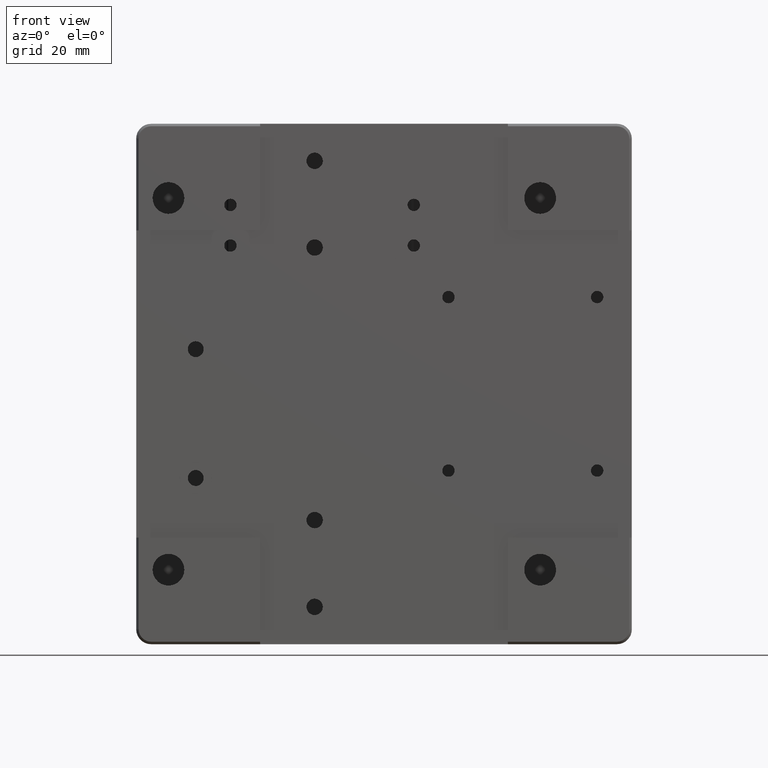
[diagram: clean part render]
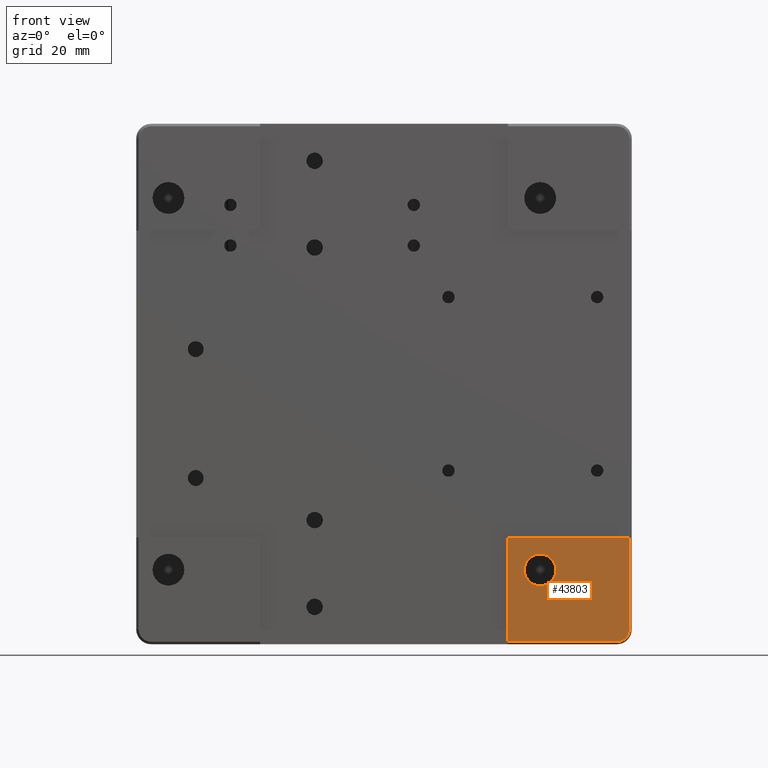
[diagram: same view with one face highlighted and labeled with its STEP entity id]
A machine part, front view. The second image highlights one B-rep face of the part: STEP entity #43803.
In plain terms, the highlighted planar face has unit normal (-0, 1, 0).
Its self-contained STEP definition (entity closure, byte-faithful):
#1004 = CARTESIAN_POINT ( 'NONE',  ( 31.50000000000000000, -19.99999999999999645, -40.70000000000000284 ) ) ;
#1654 = CARTESIAN_POINT ( 'NONE',  ( 31.50000000000000000, -19.99999999999999645, -40.70000000000000284 ) ) ;
#1696 = VERTEX_POINT ( 'NONE', #41038 ) ;
#1903 = EDGE_CURVE ( 'NONE', #23470, #4266, #25280, .T. ) ;
#3138 = LINE ( 'NONE', #7585, #42183 ) ;
#3626 = VERTEX_POINT ( 'NONE', #23172 ) ;
#4266 = VERTEX_POINT ( 'NONE', #17866 ) ;
#5052 = CARTESIAN_POINT ( 'NONE',  ( 33.46654950391972250, -20.00000000000000000, -34.94106610432581306 ) ) ;
#5295 = CARTESIAN_POINT ( 'NONE',  ( 33.11158073718687689, -20.00000000000000000, -34.70388355726637997 ) ) ;
#5623 = CARTESIAN_POINT ( 'NONE',  ( 31.91887902047864500, -19.99999999999999645, -40.70000000000000995 ) ) ;
#5675 = DIRECTION ( 'NONE',  ( 0.0000000000000000000, 0.0000000000000000000, 1.000000000000000000 ) ) ;
#6488 = CARTESIAN_POINT ( 'NONE',  ( 28.30000000000000071, -20.00000000000000000, -37.08112097952135855 ) ) ;
#6743 = CARTESIAN_POINT ( 'NONE',  ( 29.88841926281311956, -20.00000000000000000, -34.70388355726637997 ) ) ;
#6780 = CARTESIAN_POINT ( 'NONE',  ( 25.00000000000000000, -20.00000000000000000, -31.00000000000000000 ) ) ;
#6853 = DIRECTION ( 'NONE',  ( 1.000000000000000000, -0.0000000000000000000, -0.0000000000000000000 ) ) ;
#7585 = CARTESIAN_POINT ( 'NONE',  ( 0.0000000000000000000, -20.00000000000000000, -52.00000000000000000 ) ) ;
#7656 = ORIENTED_EDGE ( 'NONE', *, *, #16476, .F. ) ;
#8910 = ORIENTED_EDGE ( 'NONE', *, *, #48940, .F. ) ;
#8972 = FACE_OUTER_BOUND ( 'NONE', #47419, .T. ) ;
#9970 = CARTESIAN_POINT ( 'NONE',  ( 28.94106610432581661, -20.00000000000000000, -35.53345049608027750 ) ) ;
#10263 = CARTESIAN_POINT ( 'NONE',  ( 49.43654202398900566, -20.00000000000000000, -50.15060748436928151 ) ) ;
#10469 = CARTESIAN_POINT ( 'NONE',  ( 31.50000000000000000, -20.00000000000000355, -34.29999999999999716 ) ) ;
#10512 = CARTESIAN_POINT ( 'NONE',  ( 46.99999999540479934, -20.00000393786149999, -51.99998649998690325 ) ) ;
#10695 = EDGE_CURVE ( 'NONE', #4266, #1696, #48171, .T. ) ;
#11674 = CARTESIAN_POINT ( 'NONE',  ( 34.61671256533860941, -20.00000000000000000, -38.33759322994969665 ) ) ;
#12033 = EDGE_LOOP ( 'NONE', ( #7656, #36468, #14705, #35354 ) ) ;
#12078 = VERTEX_POINT ( 'NONE', #6780 ) ;
#12172 = CARTESIAN_POINT ( 'NONE',  ( 0.0000000000000000000, -20.00000000000000000, -31.00000000000000000 ) ) ;
#13405 = VECTOR ( 'NONE', #22843, 1000.000000000000000 ) ;
#14705 = ORIENTED_EDGE ( 'NONE', *, *, #1903, .F. ) ;
#14798 = AXIS2_PLACEMENT_3D ( 'NONE', #36655, #25485, #40623 ) ;
#14885 = ORIENTED_EDGE ( 'NONE', *, *, #15473, .F. ) ;
#15473 = EDGE_CURVE ( 'NONE', #3626, #44435, #48529, .T. ) ;
#15545 = CARTESIAN_POINT ( 'NONE',  ( 49.50000000000000000, -20.00000000000000000, 0.0000000000000000000 ) ) ;
#16106 = CARTESIAN_POINT ( 'NONE',  ( 25.00000000000000000, -20.00000000000000000, -52.00000000000000000 ) ) ;
#16476 = EDGE_CURVE ( 'NONE', #1696, #42017, #41439, .T. ) ;
#17600 = CARTESIAN_POINT ( 'NONE',  ( 34.05893389567417984, -20.00000000000000000, -35.53345049608026329 ) ) ;
#17866 = CARTESIAN_POINT ( 'NONE',  ( 31.50000000000000000, -20.00000000000000355, -34.29999999999999716 ) ) ;
#19025 = CARTESIAN_POINT ( 'NONE',  ( 28.70388355726637286, -20.00000000000000000, -39.11158073718688399 ) ) ;
#19355 = CARTESIAN_POINT ( 'NONE',  ( 34.70000000000000284, -20.00000000000000000, -37.50000000000000000 ) ) ;
#19368 = LINE ( 'NONE', #12172, #13405 ) ;
#20528 = VERTEX_POINT ( 'NONE', #16106 ) ;
#20716 = ORIENTED_EDGE ( 'NONE', *, *, #36282, .F. ) ;
#20743 = CARTESIAN_POINT ( 'NONE',  ( 32.33759322994970375, -19.99999999999999645, -40.61671256533861651 ) ) ;
#21511 = FACE_BOUND ( 'NONE', #12033, .T. ) ;
#22145 = CARTESIAN_POINT ( 'NONE',  ( 48.26267022695540021, -20.00000000000000000, -51.68301728957672481 ) ) ;
#22690 = EDGE_CURVE ( 'NONE', #42017, #23470, #36185, .T. ) ;
#22843 = DIRECTION ( 'NONE',  ( 1.000000000000000000, 0.0000000000000000000, 0.0000000000000000000 ) ) ;
#23172 = CARTESIAN_POINT ( 'NONE',  ( 49.49999999927580063, -20.00000000000000000, -31.00000000000000000 ) ) ;
#23470 = VERTEX_POINT ( 'NONE', #48782 ) ;
#23946 = CARTESIAN_POINT ( 'NONE',  ( 30.66240677005030335, -19.99999999999999645, -40.61671256533860941 ) ) ;
#24405 = VERTEX_POINT ( 'NONE', #33193 ) ;
#25077 = CARTESIAN_POINT ( 'NONE',  ( 28.70388355726637286, -20.00000000000000000, -35.88841926281313022 ) ) ;
#25280 = B_SPLINE_CURVE_WITH_KNOTS ( 'NONE', 3,
 ( #48099, #28753, #44142, #40426, #17600, #5052, #5295, #40670, #47849, #25528 ),
 .UNSPECIFIED., .F., .F.,
 ( 4, 2, 2, 2, 4 ),
 ( 0.0000000000000000000, 0.1250000000000000000, 0.2500000000000000000, 0.3750000000000000000, 0.5000000000000000000 ),
 .UNSPECIFIED. ) ;
#25485 = DIRECTION ( 'NONE',  ( -0.0000000000000000000, 1.000000000000000000, 0.0000000000000000000 ) ) ;
#25528 = CARTESIAN_POINT ( 'NONE',  ( 31.50000000000000000, -20.00000000000000355, -34.29999999999999716 ) ) ;
#25612 = CARTESIAN_POINT ( 'NONE',  ( 47.33132662399959401, -19.99999999999999645, -51.99997511548938434 ) ) ;
#26485 = VECTOR ( 'NONE', #37121, 1000.000000000000000 ) ;
#26701 = CARTESIAN_POINT ( 'NONE',  ( 28.38328743466139059, -20.00000000000000355, -38.33759322994970375 ) ) ;
#26783 = CARTESIAN_POINT ( 'NONE',  ( 34.70000000000000284, -20.00000000000000000, -37.91887902047863435 ) ) ;
#28720 = LINE ( 'NONE', #39897, #43750 ) ;
#28753 = CARTESIAN_POINT ( 'NONE',  ( 34.69999999999999574, -19.99999999999999645, -37.08112097952135855 ) ) ;
#29046 = CARTESIAN_POINT ( 'NONE',  ( 29.53345049608027040, -20.00000000000000000, -34.94106610432583437 ) ) ;
#29344 = CARTESIAN_POINT ( 'NONE',  ( 47.65072788909019863, -20.00000000000000355, -51.93633439239967942 ) ) ;
#29506 = B_SPLINE_CURVE_WITH_KNOTS ( 'NONE', 3,
 ( #10512, #25612, #29344, #22145, #37280, #44225, #36791, #10263, #48180, #44714 ),
 .UNSPECIFIED., .F., .F.,
 ( 4, 2, 2, 2, 4 ),
 ( 0.0000000000000000000, 0.2500000000000000000, 0.5000000000000000000, 0.7500000000000000000, 1.000000000000000000 ),
 .UNSPECIFIED. ) ;
#30135 = CARTESIAN_POINT ( 'NONE',  ( 49.49998618531609651, -20.00000394460230169, -49.50000001637170755 ) ) ;
#30466 = CARTESIAN_POINT ( 'NONE',  ( 31.50000000000000000, -19.99999999999999645, -40.70000000000000284 ) ) ;
#30514 = CARTESIAN_POINT ( 'NONE',  ( 34.05893389567418694, -20.00000000000000000, -39.46654950391972960 ) ) ;
#33120 = EDGE_CURVE ( 'NONE', #24405, #44435, #29506, .T. ) ;
#33193 = CARTESIAN_POINT ( 'NONE',  ( 46.99999999540479934, -20.00000393786149999, -51.99998649998690325 ) ) ;
#34252 = CARTESIAN_POINT ( 'NONE',  ( 33.46654950391972960, -20.00000000000000000, -40.05893389567417273 ) ) ;
#35354 = ORIENTED_EDGE ( 'NONE', *, *, #22690, .F. ) ;
#35613 = CARTESIAN_POINT ( 'NONE',  ( 29.53345049608027395, -20.00000000000000000, -40.05893389567417984 ) ) ;
#35855 = CARTESIAN_POINT ( 'NONE',  ( 31.08112097952135855, -20.00000000000000000, -40.70000000000000995 ) ) ;
#35883 = CARTESIAN_POINT ( 'NONE',  ( 33.11158073718688399, -20.00000000000000000, -40.29611644273361293 ) ) ;
#36185 = B_SPLINE_CURVE_WITH_KNOTS ( 'NONE', 3,
 ( #1004, #5623, #20743, #35883, #34252, #30514, #45645, #11674, #26783, #19355 ),
 .UNSPECIFIED., .F., .F.,
 ( 4, 2, 2, 2, 4 ),
 ( 0.5000000000000000000, 0.6250000000000000000, 0.7500000000000000000, 0.8750000000000000000, 1.000000000000000000 ),
 .UNSPECIFIED. ) ;
#36249 = CARTESIAN_POINT ( 'NONE',  ( 31.08112097952134789, -20.00000000000000355, -34.29999999999999716 ) ) ;
#36282 = EDGE_CURVE ( 'NONE', #20528, #12078, #28720, .T. ) ;
#36468 = ORIENTED_EDGE ( 'NONE', *, *, #10695, .F. ) ;
#36655 = CARTESIAN_POINT ( 'NONE',  ( -51.47999999999999687, -20.00000000000000000, 54.08000000000000540 ) ) ;
#36688 = EDGE_CURVE ( 'NONE', #20528, #24405, #3138, .T. ) ;
#36791 = CARTESIAN_POINT ( 'NONE',  ( 49.18280965798741278, -20.00000000000000000, -50.76279063167673655 ) ) ;
#37121 = DIRECTION ( 'NONE',  ( 0.0000000000000000000, 0.0000000000000000000, -1.000000000000000000 ) ) ;
#37280 = CARTESIAN_POINT ( 'NONE',  ( 48.53353898563740643, -20.00000000000000000, -51.50185669735994054 ) ) ;
#37877 = CARTESIAN_POINT ( 'NONE',  ( 28.29999999999999716, -19.99999999999999645, -37.91887902047863435 ) ) ;
#38600 = CARTESIAN_POINT ( 'NONE',  ( 29.88841926281312311, -20.00000000000000000, -40.29611644273362003 ) ) ;
#39897 = CARTESIAN_POINT ( 'NONE',  ( 25.00000000000000000, -20.00000000000000000, 0.0000000000000000000 ) ) ;
#39966 = CARTESIAN_POINT ( 'NONE',  ( 28.38328743466139414, -20.00000000000000000, -36.66240677005031046 ) ) ;
#40426 = CARTESIAN_POINT ( 'NONE',  ( 34.29611644273361293, -20.00000000000000000, -35.88841926281310180 ) ) ;
#40623 = DIRECTION ( 'NONE',  ( 1.000000000000000000, 0.0000000000000000000, 0.0000000000000000000 ) ) ;
#40670 = CARTESIAN_POINT ( 'NONE',  ( 32.33759322994968954, -19.99999999999999289, -34.38328743466137638 ) ) ;
#40709 = CARTESIAN_POINT ( 'NONE',  ( 30.66240677005029980, -20.00000000000000355, -34.38328743466139059 ) ) ;
#41038 = CARTESIAN_POINT ( 'NONE',  ( 28.29999999999999716, -20.00000000000000000, -37.50000000000000000 ) ) ;
#41439 = B_SPLINE_CURVE_WITH_KNOTS ( 'NONE', 3,
 ( #41596, #37877, #26701, #19025, #41836, #35613, #38600, #23946, #35855, #1654 ),
 .UNSPECIFIED., .F., .F.,
 ( 4, 2, 2, 2, 4 ),
 ( 0.0000000000000000000, 0.1250000000000000000, 0.2500000000000000000, 0.3750000000000000000, 0.5000000000000000000 ),
 .UNSPECIFIED. ) ;
#41596 = CARTESIAN_POINT ( 'NONE',  ( 28.29999999999999716, -20.00000000000000000, -37.50000000000000000 ) ) ;
#41836 = CARTESIAN_POINT ( 'NONE',  ( 28.94106610432582372, -20.00000000000000000, -39.46654950391972250 ) ) ;
#42017 = VERTEX_POINT ( 'NONE', #30466 ) ;
#42183 = VECTOR ( 'NONE', #6853, 1000.000000000000000 ) ;
#42615 = ORIENTED_EDGE ( 'NONE', *, *, #33120, .T. ) ;
#43750 = VECTOR ( 'NONE', #5675, 1000.000000000000000 ) ;
#43803 = ADVANCED_FACE ( 'NONE', ( #21511, #8972 ), #48299, .F. ) ;
#43932 = CARTESIAN_POINT ( 'NONE',  ( 28.29999999999999716, -20.00000000000000000, -37.50000000000000000 ) ) ;
#44142 = CARTESIAN_POINT ( 'NONE',  ( 34.61671256533861651, -20.00000000000000355, -36.66240677005030335 ) ) ;
#44225 = CARTESIAN_POINT ( 'NONE',  ( 49.00195972828300484, -20.00000000000000000, -51.03364201656047072 ) ) ;
#44435 = VERTEX_POINT ( 'NONE', #30135 ) ;
#44569 = ORIENTED_EDGE ( 'NONE', *, *, #36688, .T. ) ;
#44714 = CARTESIAN_POINT ( 'NONE',  ( 49.49998618531609651, -20.00000394460230169, -49.50000001637170755 ) ) ;
#45645 = CARTESIAN_POINT ( 'NONE',  ( 34.29611644273363424, -20.00000000000000000, -39.11158073718687689 ) ) ;
#47419 = EDGE_LOOP ( 'NONE', ( #42615, #14885, #8910, #20716, #44569 ) ) ;
#47849 = CARTESIAN_POINT ( 'NONE',  ( 31.91887902047863790, -20.00000000000000355, -34.29999999999999716 ) ) ;
#48099 = CARTESIAN_POINT ( 'NONE',  ( 34.70000000000000284, -20.00000000000000000, -37.50000000000000000 ) ) ;
#48171 = B_SPLINE_CURVE_WITH_KNOTS ( 'NONE', 3,
 ( #10469, #36249, #40709, #6743, #29046, #9970, #25077, #39966, #6488, #43932 ),
 .UNSPECIFIED., .F., .F.,
 ( 4, 2, 2, 2, 4 ),
 ( 0.5000000000000000000, 0.6250000000000000000, 0.7500000000000000000, 0.8750000000000000000, 1.000000000000000000 ),
 .UNSPECIFIED. ) ;
#48180 = CARTESIAN_POINT ( 'NONE',  ( 49.49997511548940565, -20.00000000000000000, -49.83170779836160591 ) ) ;
#48299 = PLANE ( 'NONE',  #14798 ) ;
#48529 = LINE ( 'NONE', #15545, #26485 ) ;
#48782 = CARTESIAN_POINT ( 'NONE',  ( 34.70000000000000284, -20.00000000000000000, -37.50000000000000000 ) ) ;
#48940 = EDGE_CURVE ( 'NONE', #12078, #3626, #19368, .T. ) ;